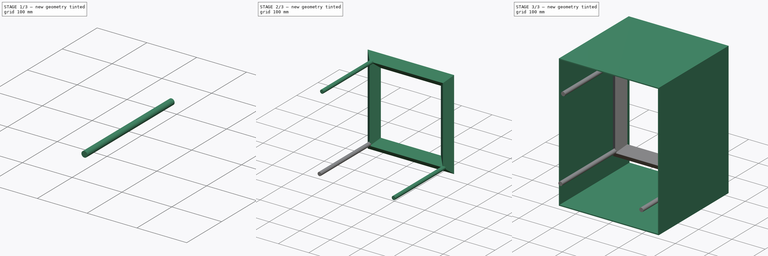
[diagram: build sequence overview — one tinted view per stage of 3, left to right]
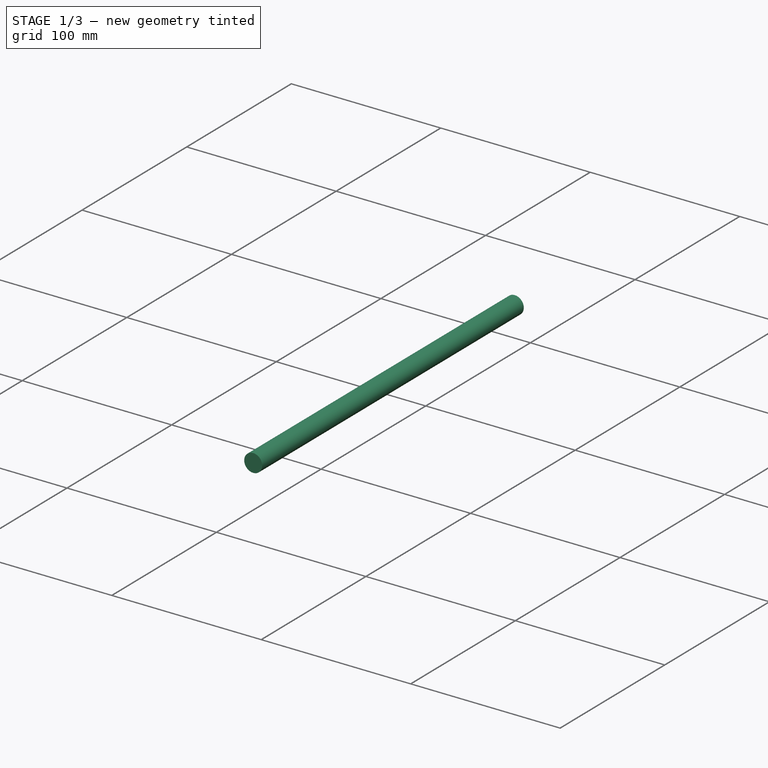
[diagram: stage 1 of 3 — iso view after this stage's code; geometry added in this stage tinted green]
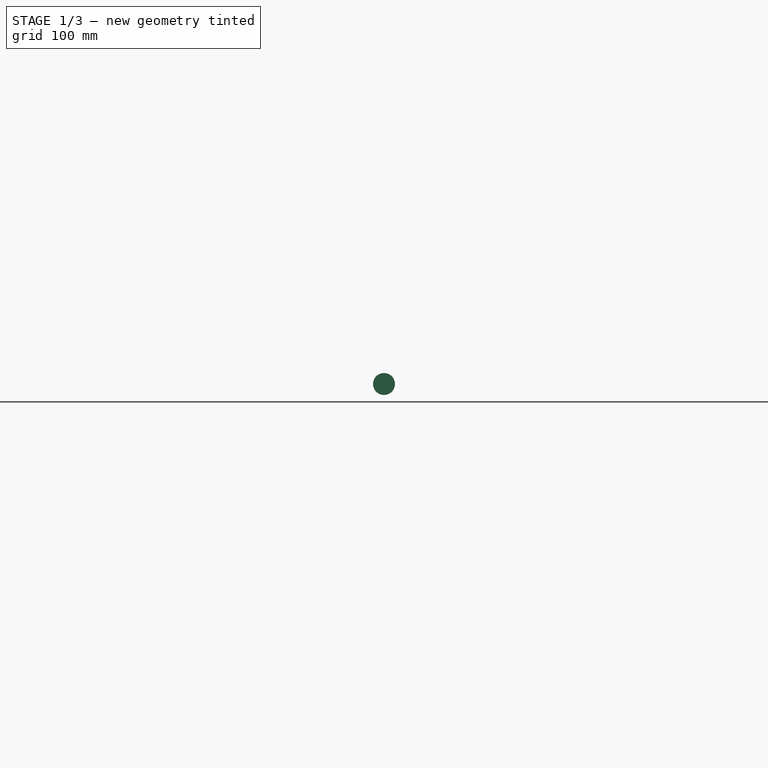
[diagram: stage 1 of 3 — front view after this stage's code; geometry added in this stage tinted green]
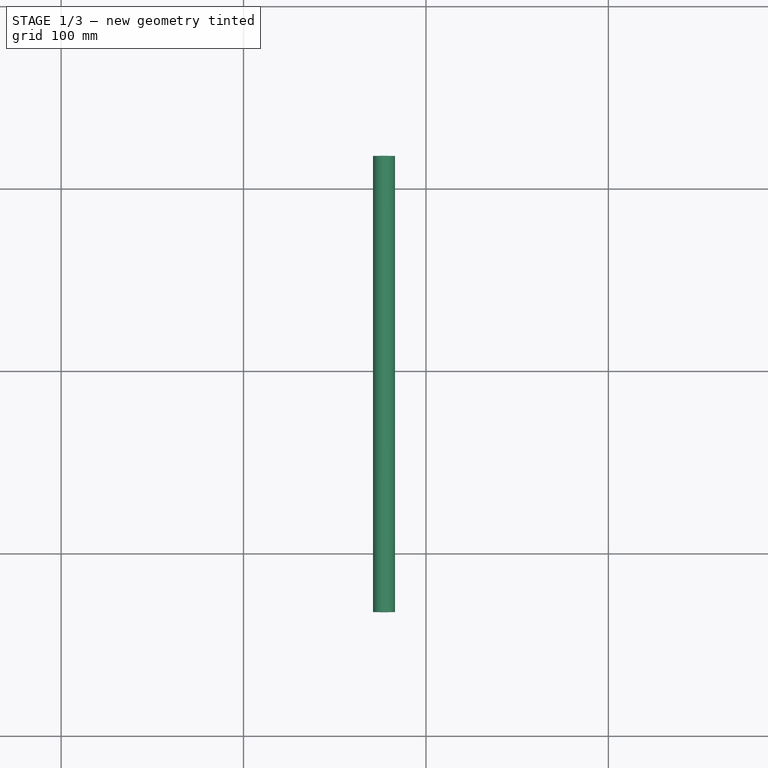
[diagram: stage 1 of 3 — top view after this stage's code; geometry added in this stage tinted green]
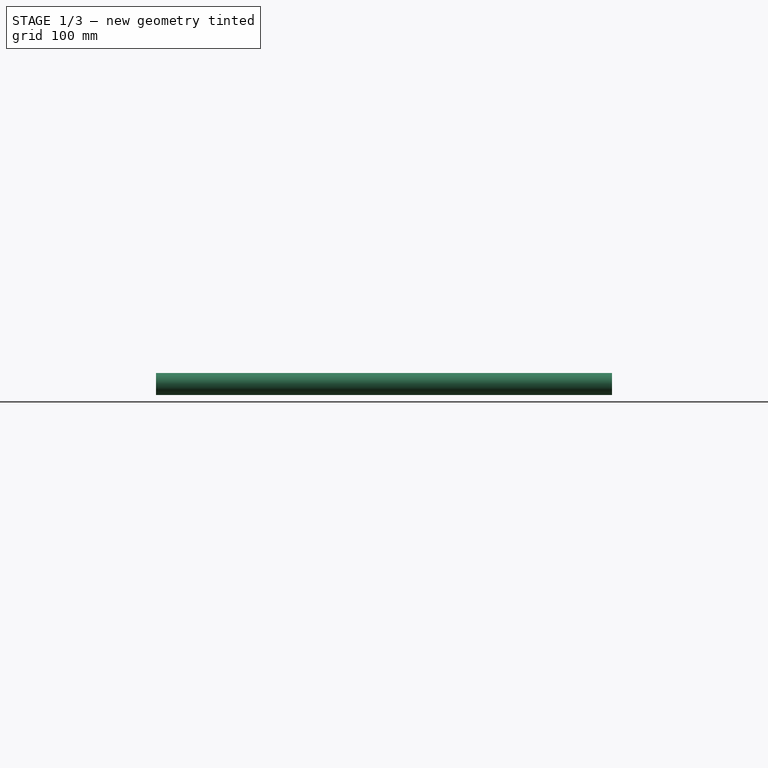
[diagram: stage 1 of 3 — right view after this stage's code; geometry added in this stage tinted green]
FCSTD DOCUMENT  (FreeCAD 0.18R13516 (Git))
Label: CloudChamber_01
License: All rights reserved
LicenseURL: http://en.wikipedia.org/wiki/All_rights_reserved
objects: PartDesign::FeatureBase×4, Sketcher::SketchObject×3, PartDesign::Body×2, PartDesign::Pad×1, Part::Sweep×1, Part::Cylinder×1
note: 13 computed .brp shape members not serialized (recipe doc carries the construction recipe); baked Part::Feature solids carry a one-line shape summary decoded from their .brp

FEATURE [PartDesign::Body] Body001
  BaseFeature = -> Sweep
  Group = -> [BaseFeature,Sketch001,Sketch002]
  Origin = -> Origin001
  Tip = -> BaseFeature
FEATURE [Part::Cylinder] Cylinder  label="Válec"
  Angle = 360
  AttacherType = Attacher::AttachEngine3D
  Height = 250
  Placement = pos=(120,218,125) rot=(1,0,0;1.5708rad)
  Radius = 6
FEATURE [PartDesign::FeatureBase] Clone002
  BaseFeature = -> Cylinder
  Placement = pos=(-123,218,-121) rot=(1,0,0;1.5708rad)
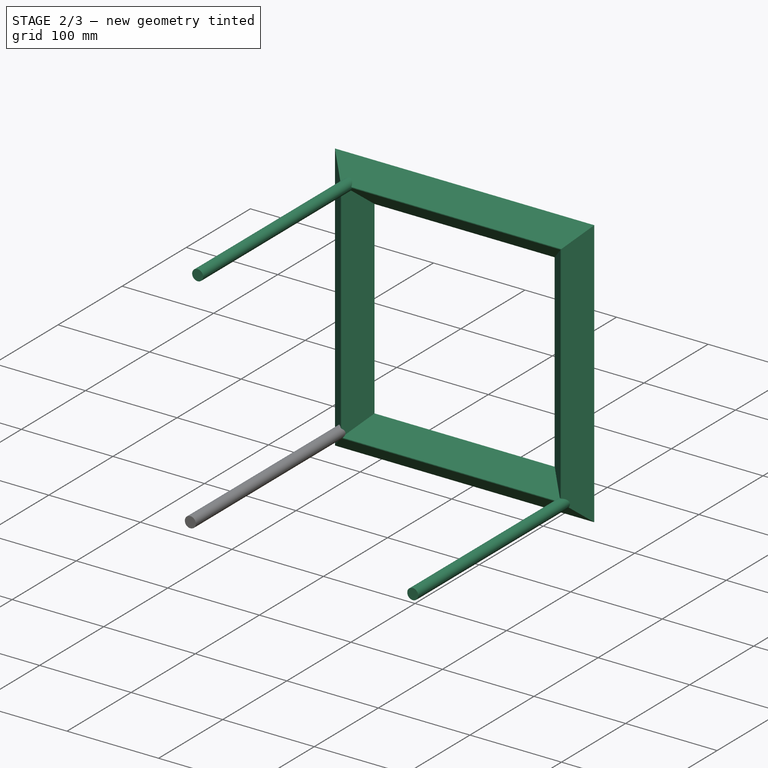
[diagram: stage 2 of 3 — iso view after this stage's code; geometry added in this stage tinted green]
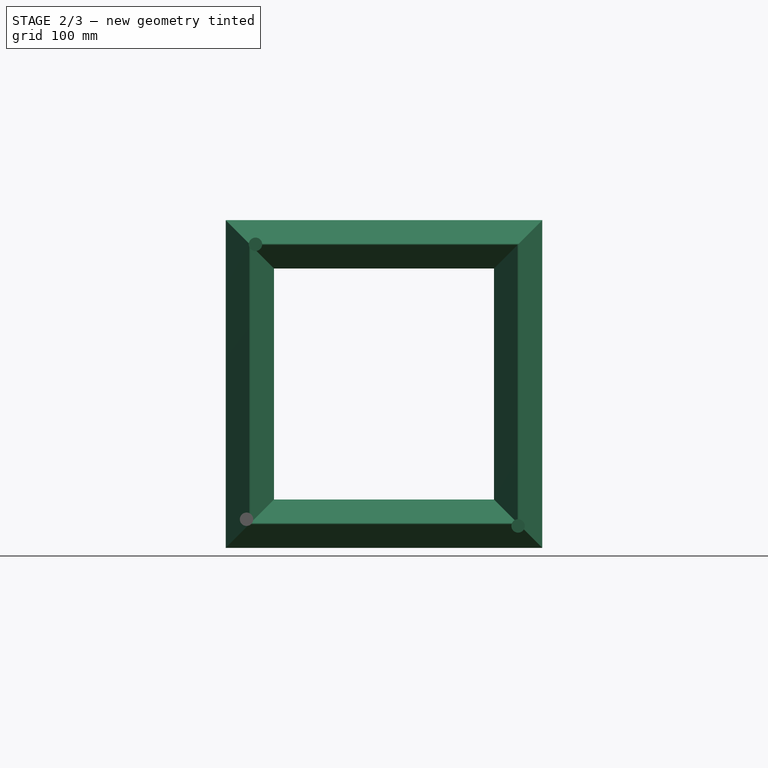
[diagram: stage 2 of 3 — front view after this stage's code; geometry added in this stage tinted green]
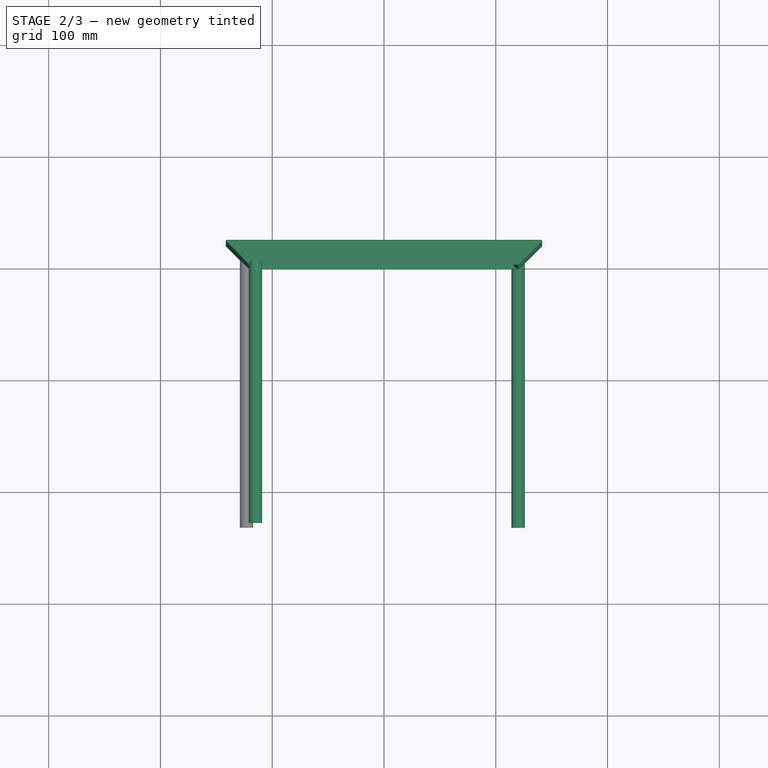
[diagram: stage 2 of 3 — top view after this stage's code; geometry added in this stage tinted green]
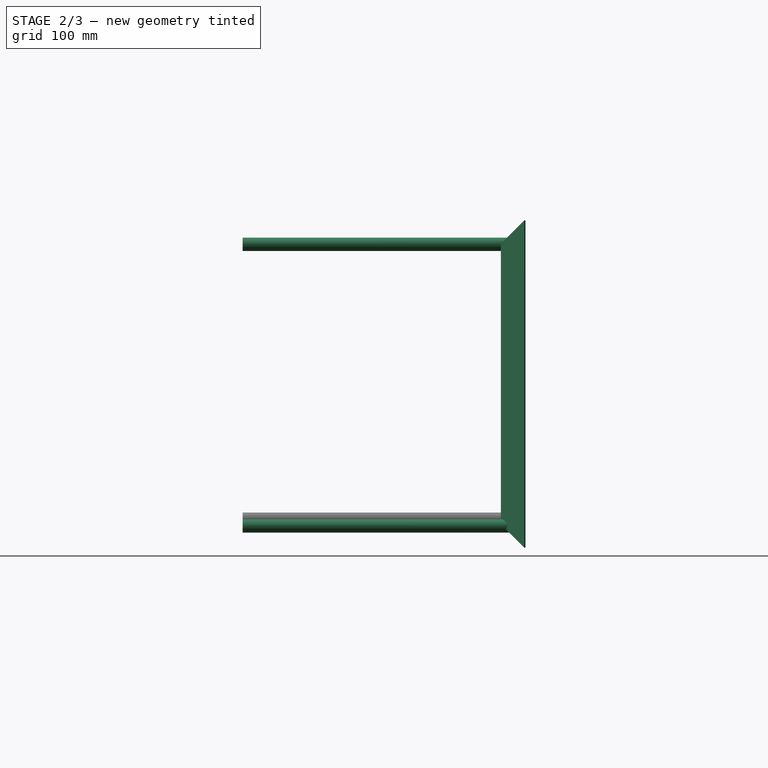
[diagram: stage 2 of 3 — right view after this stage's code; geometry added in this stage tinted green]
FEATURE [PartDesign::Body] Body
  Group = -> [Sketch,Pad]
  Origin = -> Origin
  Tip = -> Pad
FEATURE [Sketcher::SketchObject] Sketch001
  MapMode = 5
  Placement = pos=(0,0,0) rot=(1,0,0;1.5708rad)
  Support = -> [XZ_Plane001]
  sketch-geometry (6):
    g0: LineSegment StartX=15 StartY=20 StartZ=0 EndX=-15 EndY=20 EndZ=0
    g1: LineSegment StartX=-15 StartY=20 StartZ=0 EndX=-15 EndY=-20 EndZ=0
    g2: LineSegment StartX=-15 StartY=-20 StartZ=0 EndX=15 EndY=-20 EndZ=0
    g3: LineSegment StartX=15 StartY=-20 StartZ=0 EndX=15 EndY=20 EndZ=0
    g4: LineSegment [constr] StartX=-15 StartY=20 StartZ=0 EndX=0 EndY=0 EndZ=0
    g5: LineSegment [constr] StartX=0 StartY=0 StartZ=0 EndX=15 EndY=-20 EndZ=0
  constraints (16):
    c: Coincident(g0,g1)
    c: Coincident(g1,g2)
    c: Coincident(g2,g3)
    c: Coincident(g3,g0)
    c: Horizontal(g0)
    c: Horizontal(g2)
    c: Vertical(g1)
    c: Vertical(g3)
    c: Coincident(g4,g0)
    c: Coincident(g4,g-1)
    c: Coincident(g5,g-1)
    c: Coincident(g5,g2)
    c: Parallel(g4,g5)
    c: Equal(g5,g4)
    c: Distance(g3) = 40
    c: Distance(g0) = 30
FEATURE [Sketcher::SketchObject] Sketch002
  AttachmentOffset = pos=(120,200,0) rot=(0,0,1;0rad)
  MapMode = 5
  Placement = pos=(120,200,0) rot=(0,0,1;0rad)
  Support = -> [XY_Plane001]
  sketch-geometry (8):
    g0: LineSegment StartX=-21.6274 StartY=20.2132 StartZ=0 EndX=-0.414214 EndY=-1 EndZ=0
    g1: LineSegment StartX=-0.414214 StartY=-1 StartZ=0 EndX=0.414214 EndY=-1 EndZ=0
    g2: LineSegment StartX=0.414214 StartY=-1 StartZ=0 EndX=21.6274 EndY=20.2132 EndZ=0
    g3: LineSegment StartX=21.6274 StartY=20.2132 StartZ=0 EndX=20.9203 EndY=20.9203 EndZ=0
    g4: LineSegment StartX=20.9203 StartY=20.9203 StartZ=0 EndX=0 EndY=0 EndZ=0
    g5: LineSegment StartX=0 StartY=0 StartZ=0 EndX=-20.9203 EndY=20.9203 EndZ=0
    g6: LineSegment StartX=-20.9203 StartY=20.9203 StartZ=0 EndX=-21.6274 EndY=20.2132 EndZ=0
    g7: LineSegment [constr] StartX=-20.9203 StartY=20.9203 StartZ=0 EndX=20.9203 EndY=20.9203 EndZ=0
  constraints (22):
    c: Coincident(g1,g0)
    c: Coincident(g2,g1)
    c: Coincident(g4,g3)
    c: Coincident(g5,g4)
    c: Coincident(g6,g0)
    c: Angle(g4,g5) = 1.5708
    c: Parallel(g2,g4)
    c: Parallel(g0,g5)
    c: Coincident(g5,g6)
    c: Coincident(g7,g5)
    c: Coincident(g7,g3)
    c: Horizontal(g7)
    c: Coincident(g2,g3)
    c: Equal(g6,g3)
    c: Perpendicular(g6,g5)
    c: Perpendicular(g4,g3)
    c: Coincident(g4,g-1)
    c: Horizontal(g1)
    c: Distance(g3) = 1
    c: DistanceY(g1,g-1) = 1
    c: Distance(g2) = 30
    c: Equal(g0,g2)
FEATURE [Part::Sweep] Sweep
  Frenet = false
  Sections = -> [Sketch002]
  Solid = true
  Spine = -> Sketch001 [Edge2,Edge3,Edge4,Edge1]
  Transition = 1
FEATURE [PartDesign::FeatureBase] Clone
  BaseFeature = -> Cylinder
  Placement = pos=(120,218,-127) rot=(1,0,0;1.5708rad)
FEATURE [PartDesign::FeatureBase] Clone001
  BaseFeature = -> Cylinder
  Placement = pos=(-115,218,125) rot=(1,0,0;1.5708rad)
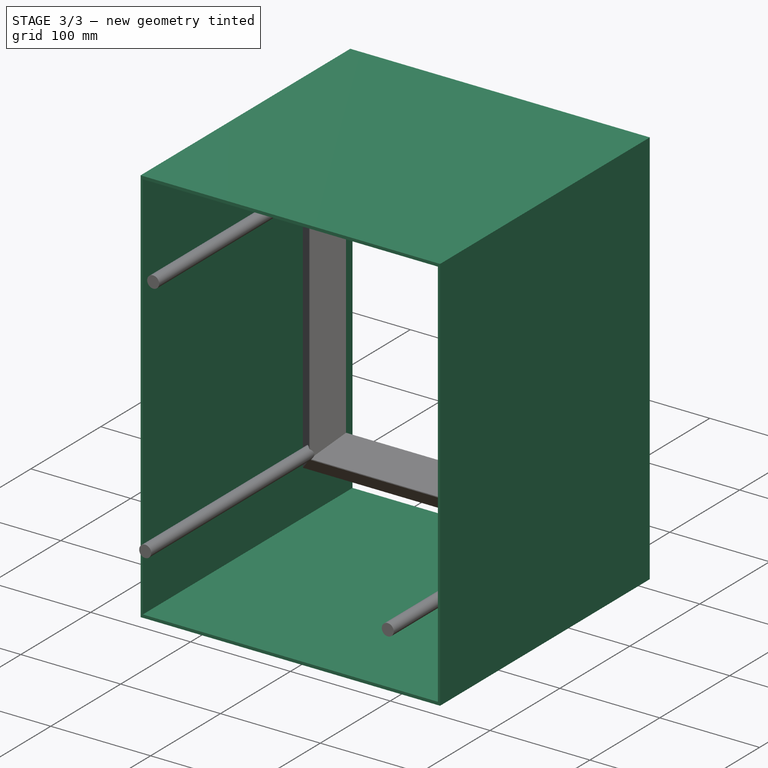
[diagram: stage 3 of 3 — iso view after this stage's code; geometry added in this stage tinted green]
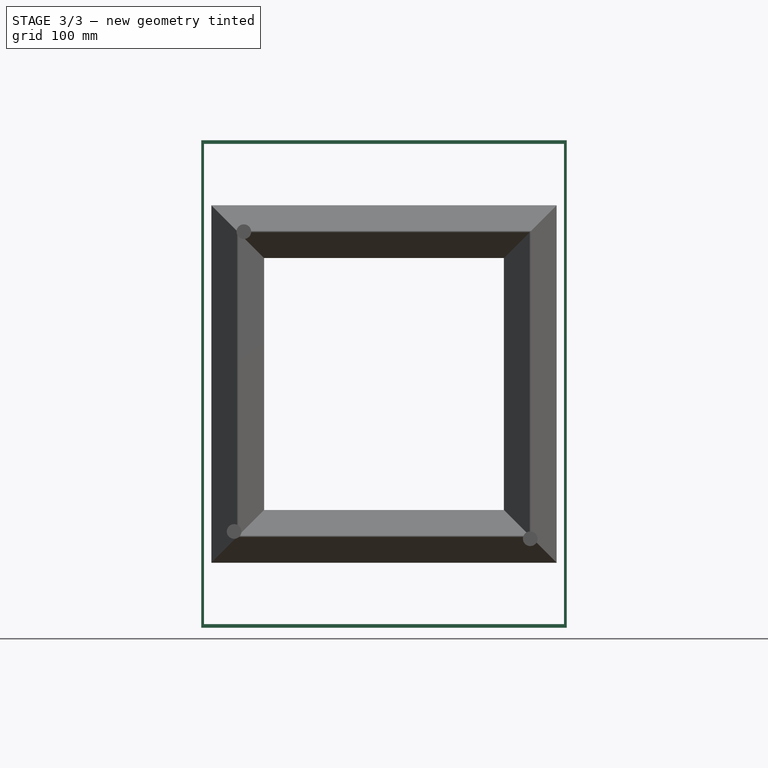
[diagram: stage 3 of 3 — front view after this stage's code; geometry added in this stage tinted green]
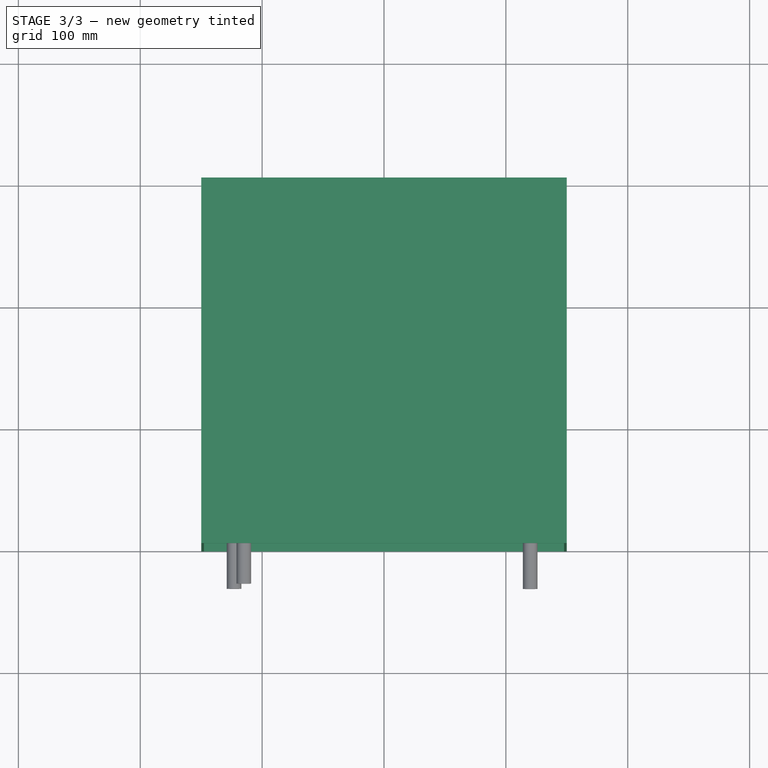
[diagram: stage 3 of 3 — top view after this stage's code; geometry added in this stage tinted green]
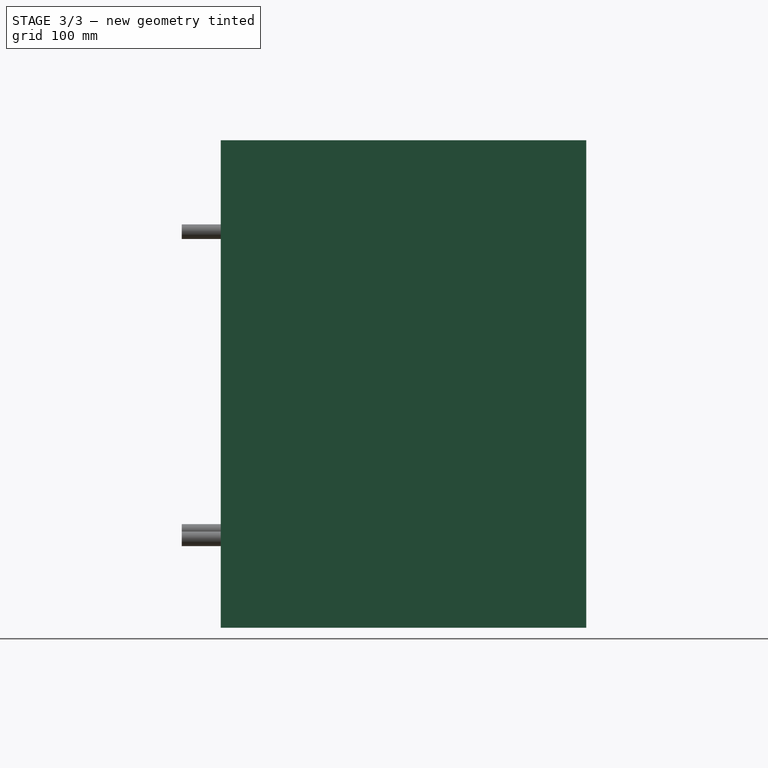
[diagram: stage 3 of 3 — right view after this stage's code; geometry added in this stage tinted green]
FEATURE [Sketcher::SketchObject] Sketch
  MapMode = 5
  Placement = pos=(0,0,0) rot=(1,0,0;1.5708rad)
  Support = -> [XZ_Plane]
  sketch-geometry (12):
    g0: LineSegment StartX=-150 StartY=200 StartZ=0 EndX=150 EndY=200 EndZ=0
    g1: LineSegment StartX=150 StartY=200 StartZ=0 EndX=150 EndY=-200 EndZ=0
    g2: LineSegment StartX=150 StartY=-200 StartZ=0 EndX=-150 EndY=-200 EndZ=0
    g3: LineSegment StartX=-150 StartY=-200 StartZ=0 EndX=-150 EndY=200 EndZ=0
    g4: LineSegment [constr] StartX=-150 StartY=200 StartZ=0 EndX=0 EndY=0 EndZ=0
    g5: LineSegment [constr] StartX=0 StartY=0 StartZ=0 EndX=150 EndY=-200 EndZ=0
    g6: LineSegment StartX=-147.75 StartY=197 StartZ=0 EndX=147.75 EndY=197 EndZ=0
    g7: LineSegment StartX=147.75 StartY=197 StartZ=0 EndX=147.75 EndY=-197 EndZ=0
    g8: LineSegment StartX=147.75 StartY=-197 StartZ=0 EndX=-147.75 EndY=-197 EndZ=0
    g9: LineSegment StartX=-147.75 StartY=-197 StartZ=0 EndX=-147.75 EndY=197 EndZ=0
    g10: LineSegment [constr] StartX=147.75 StartY=197 StartZ=0 EndX=147.75 EndY=200 EndZ=0
    g11: LineSegment [constr] StartX=147.75 StartY=-197 StartZ=0 EndX=147.75 EndY=-200 EndZ=0
  constraints (34):
    c: Coincident(g0,g1)
    c: Coincident(g1,g2)
    c: Coincident(g2,g3)
    c: Coincident(g3,g0)
    c: Horizontal(g0)
    c: Horizontal(g2)
    c: Vertical(g1)
    c: Vertical(g3)
    c: Coincident(g4,g0)
    c: Coincident(g4,g-1)
    c: Coincident(g5,g-1)
    c: Coincident(g5,g1)
    c: Parallel(g5,g4)
    c: Equal(g5,g4)
    c: Distance(g1) = 400
    c: Distance(g2) = 300
    c: Coincident(g6,g7)
    c: Coincident(g7,g8)
    c: Coincident(g8,g9)
    c: Coincident(g9,g6)
    c: Horizontal(g6)
    c: Horizontal(g8)
    c: Vertical(g7)
    c: Vertical(g9)
    c: PointOnObject(g6,g4)
    c: PointOnObject(g7,g5)
    c: Coincident(g10,g6)
    c: Vertical(g10)
    c: Coincident(g11,g7)
    c: Vertical(g11)
    c: PointOnObject(g11,g2)
    c: PointOnObject(g10,g0)
    c: Equal(g10,g11)
    c: Distance(g10) = 3
FEATURE [PartDesign::Pad] Pad
  Length = 300
  Length2 = 100
  Placement = pos=(0,0,0) rot=(1,0,0;1.5708rad)
  Profile = -> Sketch
  Reversed = true
  Type = 0
FEATURE [PartDesign::FeatureBase] BaseFeature
  BaseFeature = -> Sweep
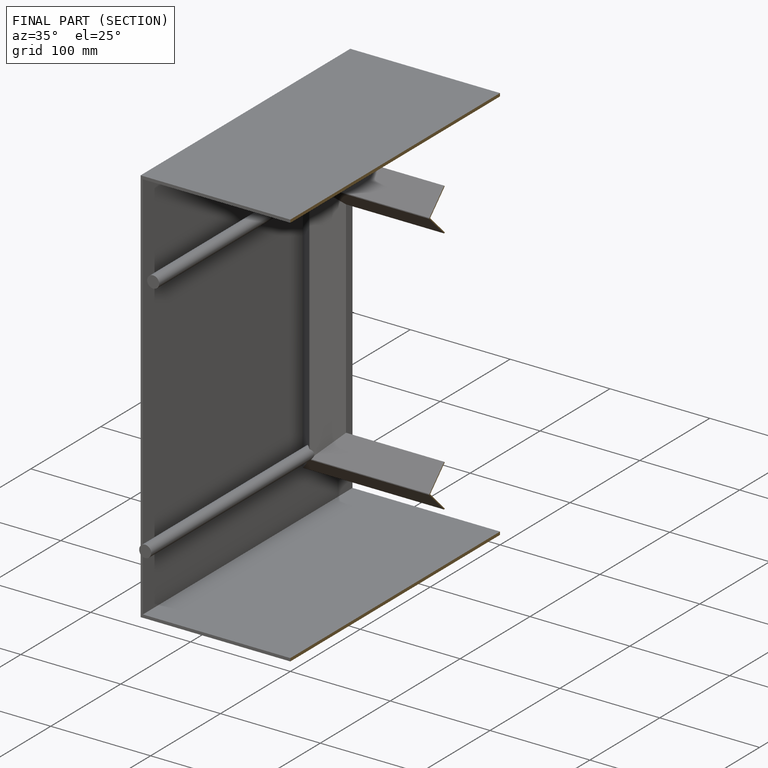
[diagram: finished part — half-section view (interior)]
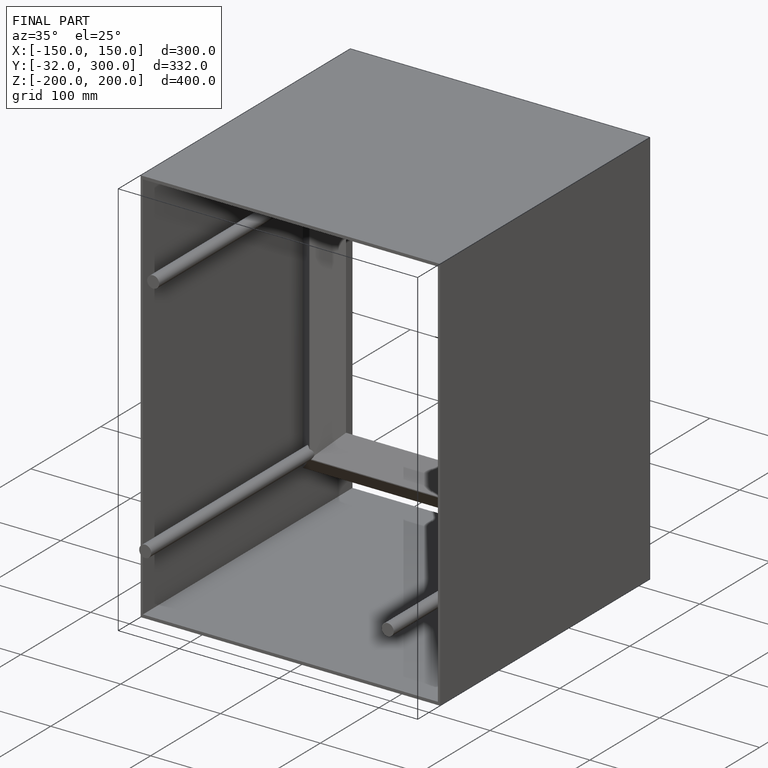
[diagram: finished part — iso view with bounding-box wireframe]
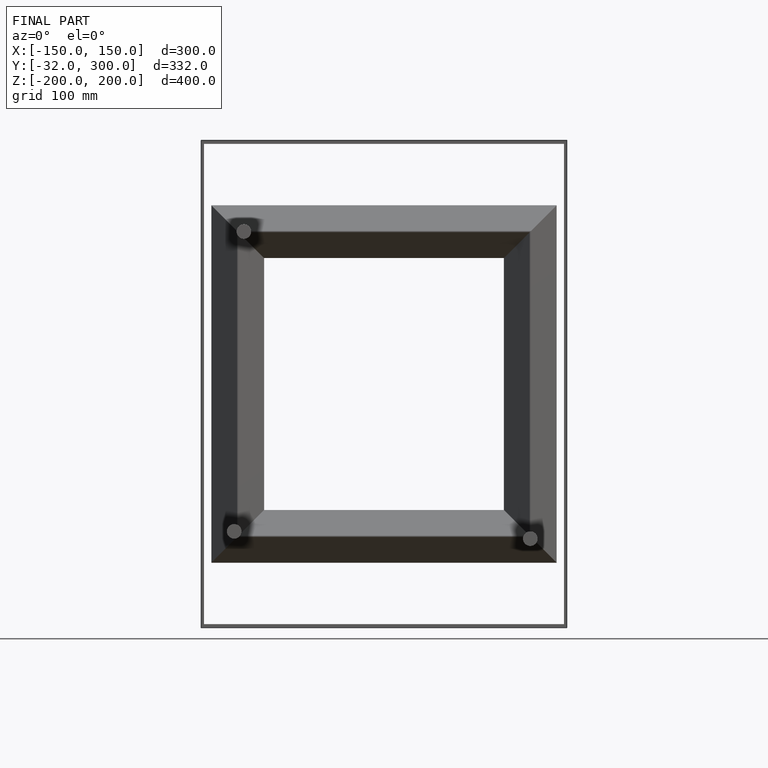
[diagram: finished part — front view with bounding-box wireframe]
